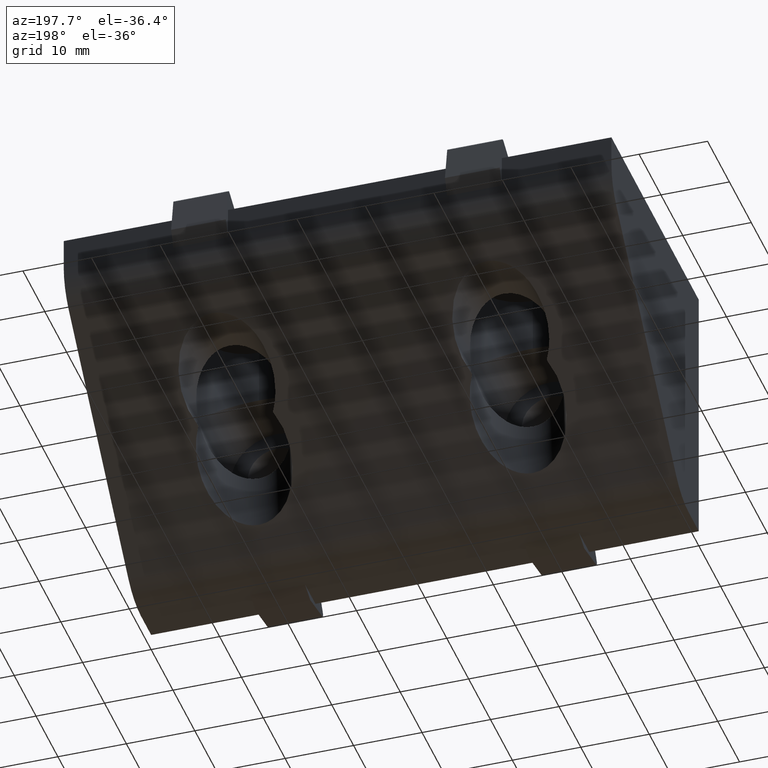
[diagram: clean part render]
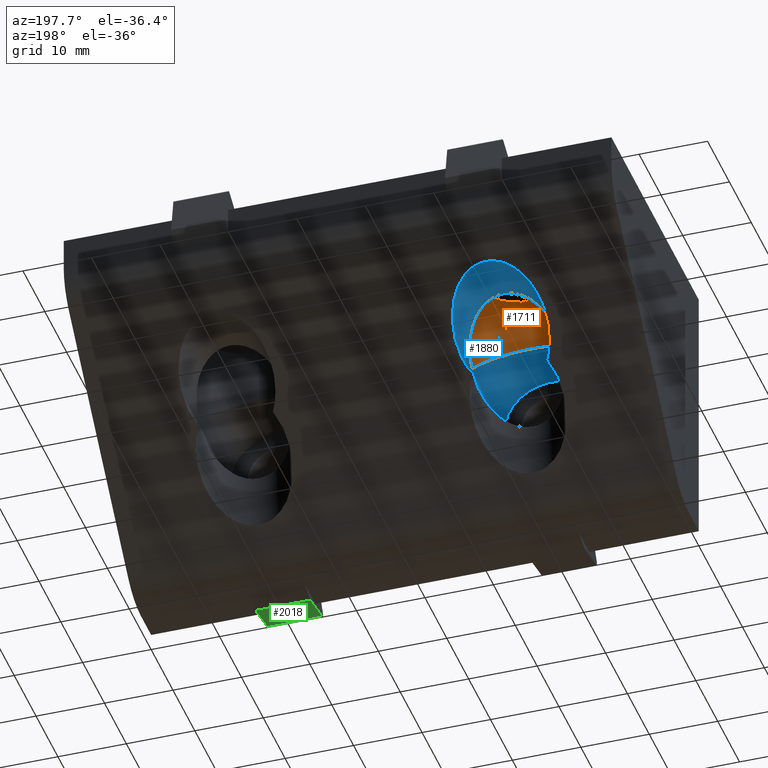
[diagram: same view with three faces highlighted in distinct colors, each labeled with its STEP entity id]
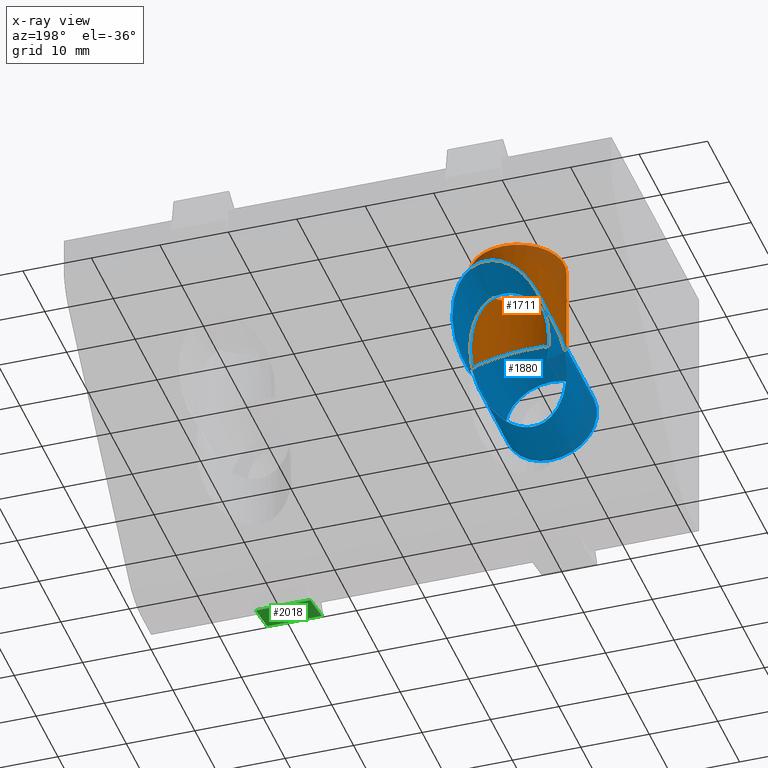
[diagram: x-ray of the same camera — body ghosted, the three highlighted faces saturated]
A machine part, auxiliary view with three faces highlighted in distinct colors.
The next image is the same camera in x-ray (body ghosted, the three faces saturated) — at least one of them is partly hidden behind the body in this view.
Their STEP definitions:

[orange] entity #1711 — the highlighted cylindrical surface (bore or boss wall) has radius 6.75 mm, axis along (0, 0, -1).
#1565=CARTESIAN_POINT('',(-19.999992699920845,13.249997058446894,-4.999998889979906));
#1566=VERTEX_POINT('',#1565);
#1567=CARTESIAN_POINT('',(-19.999992699920845,26.749994061393267,-4.999998889979906));
#1568=VERTEX_POINT('',#1567);
#1569=CARTESIAN_POINT('',(-19.999992699920845,19.999995559920080,-4.999998889979906));
#1570=DIRECTION('',(0.0,0.0,-1.0));
#1571=DIRECTION('',(0.0,-1.0,0.0));
#1572=AXIS2_PLACEMENT_3D('',#1569,#1570,#1571);
#1573=CIRCLE('',#1572,6.749998501473186);
#1574=EDGE_CURVE('',#1566,#1568,#1573,.T.);
#1576=CARTESIAN_POINT('',(-19.999992699920845,19.999995559920080,-4.999998889979906));
#1577=DIRECTION('',(0.0,0.0,-1.0));
#1578=DIRECTION('',(0.0,-1.0,0.0));
#1579=AXIS2_PLACEMENT_3D('',#1576,#1577,#1578);
#1580=CIRCLE('',#1579,6.749998501473186);
#1581=EDGE_CURVE('',#1568,#1566,#1580,.T.);
#1590=CARTESIAN_POINT('',(-19.999992699920845,19.999995559920080,-4.999998889979906));
#1591=DIRECTION('',(0.0,0.0,-1.0));
#1592=DIRECTION('',(0.0,-1.0,0.0));
#1593=AXIS2_PLACEMENT_3D('',#1590,#1591,#1592);
#1594=CYLINDRICAL_SURFACE('',#1593,6.749998501473186);
#1595=CARTESIAN_POINT('',(-19.999992699920845,13.249997058446896,-13.249989428467934));
#1596=VERTEX_POINT('',#1595);
#1597=CARTESIAN_POINT('',(-19.999992699920845,13.249997058446894,-4.999998889979906));
#1598=DIRECTION('',(0.0,0.0,-1.0));
#1599=VECTOR('',#1598,8.249990538488028);
#1600=LINE('',#1597,#1599);
#1601=EDGE_CURVE('',#1566,#1596,#1600,.T.);
#1602=ORIENTED_EDGE('',*,*,#1601,.T.);
#1603=CARTESIAN_POINT('',(-19.999899833690659,26.749995335546590,-13.249988154311279));
#1604=VERTEX_POINT('',#1603);
#1605=CARTESIAN_POINT('',(-19.999992699920845,13.249997058446894,-13.249989428467934));
#1606=CARTESIAN_POINT('',(-20.179597409290309,13.249997058446894,-13.249989428467934));
#1607=CARTESIAN_POINT('',(-20.621979188865019,13.267698458312340,-13.267690818365590));
#1608=CARTESIAN_POINT('',(-21.553988099082588,13.397461106541837,-13.397453392444831));
#1609=CARTESIAN_POINT('',(-22.662619241531424,13.750822658735208,-13.750814732642816));
#1610=CARTESIAN_POINT('',(-23.701062050114096,14.322251592291842,-14.322243258143217));
#1611=CARTESIAN_POINT('',(-24.418054359838457,14.876850514915297,-14.876841691067471));
#1612=CARTESIAN_POINT('',(-24.880769303251135,15.327973191278765,-15.327963877101599));
#1613=CARTESIAN_POINT('',(-25.304974332112799,15.808534316511171,-15.808524383938263));
#1614=CARTESIAN_POINT('',(-25.653096795751843,16.289903656570630,-16.289892969990923));
#1615=CARTESIAN_POINT('',(-25.964402816088260,16.826733819593485,-16.826721925100799));
#1616=CARTESIAN_POINT('',(-26.151357351484073,17.211404257870981,-17.211391309919364));
#1617=CARTESIAN_POINT('',(-26.328472202969174,17.637423710131031,-17.637408958575932));
#1618=CARTESIAN_POINT('',(-26.463392174906922,18.034275459265196,-18.034259737670020));
#1619=CARTESIAN_POINT('',(-26.575034668722601,18.458647266729059,-18.458624968281729));
#1620=CARTESIAN_POINT('',(-26.640231472630624,18.775113238330302,-18.775095460178498));
#1621=CARTESIAN_POINT('',(-26.684501818695772,19.051883908134805,-19.051837785622773));
#1622=CARTESIAN_POINT('',(-26.708964275162806,19.249511063587022,-19.249520315662842));
#1623=CARTESIAN_POINT('',(-26.724293718517991,19.407563323757500,-19.407435938328707));
#1624=CARTESIAN_POINT('',(-26.733681321855990,19.526070382943200,-19.526320873769311));
#1625=CARTESIAN_POINT('',(-26.740972663695196,19.644469192284323,-19.643246708170029));
#1626=CARTESIAN_POINT('',(-26.746179366100954,19.763256711689369,-19.767435341276229));
#1627=CARTESIAN_POINT('',(-26.749258890342581,19.879454216133318,-19.863491129078671));
#1628=CARTESIAN_POINT('',(-26.750352039271100,19.999995559919789,-20.056538199255122));
#1629=CARTESIAN_POINT('',(-26.749258890342979,20.120536903708022,-19.863491129077698));
#1630=CARTESIAN_POINT('',(-26.746179366099334,20.236734408146543,-19.767435341280247));
#1631=CARTESIAN_POINT('',(-26.740972663701264,20.355521927571640,-19.643246708154962));
#1632=CARTESIAN_POINT('',(-26.733681321833267,20.473920736837954,-19.526320873825597));
#1633=CARTESIAN_POINT('',(-26.724293718602901,20.592427796303102,-19.407435938118436));
#1634=CARTESIAN_POINT('',(-26.708964274711199,20.750480055080608,-19.249520316781229));
#1635=CARTESIAN_POINT('',(-26.684501822345020,20.948107221180081,-19.051837776585636));
#1636=CARTESIAN_POINT('',(-26.640231456397053,21.224877839361685,-18.775095500380047));
#1637=CARTESIAN_POINT('',(-26.575034764356410,21.541344101411742,-18.458624731448886));
#1638=CARTESIAN_POINT('',(-26.455777296444587,21.994658018887318,-18.005317770389105));
#1639=CARTESIAN_POINT('',(-26.295329487327059,22.456635661502325,-17.543341084858998));
#1640=CARTESIAN_POINT('',(-26.072506098025549,22.960648171961040,-17.039330559127908));
#1641=CARTESIAN_POINT('',(-25.818131427256041,23.440128646663176,-16.559851209787659));
#1642=CARTESIAN_POINT('',(-25.392591696026336,24.093418011726605,-15.906563085141503));
#1643=CARTESIAN_POINT('',(-24.830363647534917,24.748983398419689,-15.250998515563126));
#1644=CARTESIAN_POINT('',(-23.978556948863989,25.491167697903109,-14.508814945183829));
#1645=CARTESIAN_POINT('',(-23.125184965377066,26.020369038130795,-13.979613997320794));
#1646=CARTESIAN_POINT('',(-22.036140710346075,26.461499044706095,-13.538484278508866));
#1647=CARTESIAN_POINT('',(-21.071548641561758,26.696322205057218,-13.303661254663584));
#1648=CARTESIAN_POINT('',(-20.318208320361617,26.749993322488166,-13.249990167356261));
#1649=CARTESIAN_POINT('',(-19.999899833690659,26.749995335546590,-13.249988154311279));
#1650=B_SPLINE_CURVE_WITH_KNOTS('',3,(#1605,#1606,#1607,#1608,#1609,#1610,#1611,#1612,#1613,#1614,#1615,#1616,#1617,#1618,#1619,#1620,#1621,#1622,#1623,#1624,#1625,#1626,#1627,#1628,#1629,#1630,#1631,#1632,#1633,#1634,#1635,#1636,#1637,#1638,#1639,#1640,#1641,#1642,#1643,#1644,#1645,#1646,#1647,#1648,#1649),.UNSPECIFIED.,.F.,.U.,(4,1,1,1,1,1,1,1,1,1,1,1,1,1,1,1,1,1,1,1,1,1,1,1,1,1,1,1,1,1,1,1,1,1,1,1,1,1,1,1,1,1,4),(0.0,0.539081213596918,1.326695496417043,2.840035277583268,4.151706921437035,5.254611806897104,6.019984913599855,6.513780684534441,7.657144544209129,8.310137588951935,8.974364245271438,9.382123786417033,10.193785180283921,10.705100481138352,11.213090108221090,11.550332053166615,11.886715360339998,12.054654366879507,12.222459981833707,12.390156322223111,12.557762044025377,12.725264924369748,12.887972188165056,13.050679451960365,13.218182332304735,13.385788054107001,13.553484394496401,13.721290009450613,13.889229015990109,14.225612323163494,14.562854268109014,15.070843895191764,15.582159196048842,16.518698735025335,17.087624337635738,17.821888263034616,18.690201580889635,20.136813446438950,21.064805781785051,22.739553024633636,23.516414668748737,24.821124126270732,25.776092787975244),.UNSPECIFIED.);
#1651=EDGE_CURVE('',#1596,#1604,#1650,.T.);
#1652=ORIENTED_EDGE('',*,*,#1651,.T.);
#1653=CARTESIAN_POINT('',(-19.999899833690659,26.749995335546590,-13.249988154311279));
#1654=CARTESIAN_POINT('',(-19.978532824070417,26.749995470676630,-13.249988019182139));
#1655=CARTESIAN_POINT('',(-19.583856316334298,26.748110240725900,-13.251873248091051));
#1656=CARTESIAN_POINT('',(-18.910978656243493,26.685141504157357,-13.314841949490202));
#1657=CARTESIAN_POINT('',(-17.989770650524669,26.462920034590393,-13.537063287735167));
#1658=CARTESIAN_POINT('',(-17.092016026539874,26.120372317056407,-13.879610786816695));
#1659=CARTESIAN_POINT('',(-16.110563286347009,25.562352199923367,-14.437630497304321));
#1660=CARTESIAN_POINT('',(-15.329738657163865,24.905890936831916,-15.094091157098131));
#1661=CARTESIAN_POINT('',(-14.759390848846429,24.270670768604440,-15.729310533880222));
#1662=CARTESIAN_POINT('',(-14.428510905099870,23.822264239304399,-16.177716357643227));
#1663=CARTESIAN_POINT('',(-14.090456627210351,23.283520516227046,-16.716459014109795));
#1664=CARTESIAN_POINT('',(-13.828707505904006,22.762840602569071,-17.237137527170127));
#1665=CARTESIAN_POINT('',(-13.633643992052662,22.254529586630674,-17.745446451800348));
#1666=CARTESIAN_POINT('',(-13.536128526561662,21.949369085894908,-18.050604986581572));
#1667=CARTESIAN_POINT('',(-13.476254517551716,21.736423257753767,-18.263549476381037));
#1668=CARTESIAN_POINT('',(-13.438049125727282,21.584359570572119,-18.415610914075874));
#1669=CARTESIAN_POINT('',(-13.385799012527862,21.356423569336826,-18.643547465448524));
#1670=CARTESIAN_POINT('',(-13.343941714697706,21.135457769133801,-18.864470835225955));
#1671=CARTESIAN_POINT('',(-13.303238727655675,20.855438400164182,-19.144578668242350));
#1672=CARTESIAN_POINT('',(-13.283115870737980,20.677153590891862,-19.322498475748954));
#1673=CARTESIAN_POINT('',(-13.269504429167874,20.516589029023166,-19.483751191611450));
#1674=CARTESIAN_POINT('',(-13.262143023913303,20.409439764511589,-19.588944077397990));
#1675=CARTESIAN_POINT('',(-13.255708697270066,20.287942896840121,-19.718723325752148));
#1676=CARTESIAN_POINT('',(-13.251181125975712,20.151139155977713,-19.812036552351238));
#1677=CARTESIAN_POINT('',(-13.249872417830822,20.046660969040616,-20.039185430335493));
#1678=CARTESIAN_POINT('',(-13.250043961796969,19.968687763475316,-19.968390110248524));
#1679=CARTESIAN_POINT('',(-13.250488480754740,19.902992686926684,-19.902311338453440));
#1680=CARTESIAN_POINT('',(-13.252597669128768,19.793852183525800,-19.793929312903451));
#1681=CARTESIAN_POINT('',(-13.258656086914137,19.647930438536417,-19.647805792586055));
#1682=CARTESIAN_POINT('',(-13.267911660180914,19.501198934950864,-19.501158635320376));
#1683=CARTESIAN_POINT('',(-13.280375921335100,19.354670624859125,-19.354623869300369));
#1684=CARTESIAN_POINT('',(-13.296066782805561,19.208085794516364,-19.208050792931914));
#1685=CARTESIAN_POINT('',(-13.321341273340074,19.012496766510100,-19.012466804102367));
#1686=CARTESIAN_POINT('',(-13.353164658639720,18.817028295454215,-18.817003020961323));
#1687=CARTESIAN_POINT('',(-13.401299647931531,18.572689408624520,-18.572667679734103));
#1688=CARTESIAN_POINT('',(-13.458022194214230,18.327984458525037,-18.327965405550529));
#1689=CARTESIAN_POINT('',(-13.540013797324598,18.034682549312439,-18.034665723927443));
#1690=CARTESIAN_POINT('',(-13.633881640611769,17.749491780425085,-17.749476581617930));
#1691=CARTESIAN_POINT('',(-13.750997731716900,17.440355249311590,-17.440341427256293));
#1692=CARTESIAN_POINT('',(-14.014394878182443,16.838793100106887,-16.838781352086198));
#1693=CARTESIAN_POINT('',(-14.370781799265693,16.238014455938341,-16.238003862871381));
#1694=CARTESIAN_POINT('',(-14.841826031923375,15.637836217114838,-15.637826513326745));
#1695=CARTESIAN_POINT('',(-15.149274034762023,15.297025478366660,-15.297016198067144));
#1696=CARTESIAN_POINT('',(-15.636419646000164,14.832014933034914,-14.832006152101998));
#1697=CARTESIAN_POINT('',(-16.200138636860579,14.398700964078596,-14.398692561676535));
#1698=CARTESIAN_POINT('',(-17.066969777376698,13.893764362356110,-13.893756338702357));
#1699=CARTESIAN_POINT('',(-18.025333235048457,13.505469487917622,-13.505461711106491));
#1700=CARTESIAN_POINT('',(-19.100942017407299,13.286976161776463,-13.286968511012892));
#1701=CARTESIAN_POINT('',(-19.741264546549480,13.249997058446894,-13.249989428467934));
#1702=CARTESIAN_POINT('',(-19.999992699920845,13.249997058446894,-13.249989428467934));
#1703=B_SPLINE_CURVE_WITH_KNOTS('',3,(#1653,#1654,#1655,#1656,#1657,#1658,#1659,#1660,#1661,#1662,#1663,#1664,#1665,#1666,#1667,#1668,#1669,#1670,#1671,#1672,#1673,#1674,#1675,#1676,#1677,#1678,#1679,#1680,#1681,#1682,#1683,#1684,#1685,#1686,#1687,#1688,#1689,#1690,#1691,#1692,#1693,#1694,#1695,#1696,#1697,#1698,#1699,#1700,#1701,#1702),.UNSPECIFIED.,.F.,.U.,(4,1,1,1,1,1,1,1,1,1,1,1,1,1,1,1,1,1,1,1,1,1,1,1,1,1,1,1,1,1,1,1,1,1,1,1,1,1,1,1,1,1,1,1,1,1,1,4),(25.776092787975244,25.840196716824508,26.960191533882444,27.798726904106502,28.750473198514932,30.009639784215658,31.559226510072634,32.372749497238630,33.199114070792213,33.703196129358354,34.872631791389608,35.540518584049963,35.936954719324397,36.199781494929852,36.461598530456037,36.592168621478891,37.179432648307888,37.407188337839933,37.786388613416008,37.938086218170703,38.089687776155714,38.241209463808602,38.455031128933705,38.663963927974208,38.701507565310145,38.742951861740856,38.950013859969872,39.157326338504120,39.364778442499770,39.572405335816846,39.780253940093793,39.988374681068592,40.405644960134573,40.614905864511279,41.034975591191767,41.457539042198420,41.883165157733721,42.277080732004030,42.815132120546082,44.554332674294642,45.032236561446553,45.726325711255278,46.268155923805395,47.486336597464913,48.216145272256952,49.632709786956497,50.775163844869809,51.552185575950489),.UNSPECIFIED.);
#1704=EDGE_CURVE('',#1604,#1596,#1703,.T.);
#1705=ORIENTED_EDGE('',*,*,#1704,.T.);
#1706=ORIENTED_EDGE('',*,*,#1601,.F.);
#1707=ORIENTED_EDGE('',*,*,#1581,.F.);
#1708=ORIENTED_EDGE('',*,*,#1574,.F.);
#1709=EDGE_LOOP('',(#1602,#1652,#1705,#1706,#1707,#1708));
#1710=FACE_OUTER_BOUND('',#1709,.T.);
#1711=ADVANCED_FACE('',(#1710),#1594,.F.);

[blue] entity #1880 — the highlighted cylindrical surface (bore or boss wall) has radius 6.75 mm, axis along (0, 1, 0).
#431=CARTESIAN_POINT('',(-25.437133951099561,23.999992407996466,-23.999995030801600));
#432=VERTEX_POINT('',#431);
#442=CARTESIAN_POINT('',(-14.562851448739188,23.999992408000303,-23.999995030797592));
#443=VERTEX_POINT('',#442);
#451=CARTESIAN_POINT('',(-19.999992699920845,27.999995135905468,-19.999991744930448));
#452=DIRECTION('',(0.0,-0.707106830503862,0.707106731869230));
#453=DIRECTION('',(0.0,0.707106731869230,0.707106830503862));
#454=AXIS2_PLACEMENT_3D('',#451,#452,#453);
#455=ELLIPSE('',#454,9.545944156207165,6.750002316462510);
#456=EDGE_CURVE('',#443,#432,#455,.T.);
#1595=CARTESIAN_POINT('',(-19.999992699920845,13.249997058446896,-13.249989428467934));
#1596=VERTEX_POINT('',#1595);
#1603=CARTESIAN_POINT('',(-19.999899833690659,26.749995335546590,-13.249988154311279));
#1604=VERTEX_POINT('',#1603);
#1605=CARTESIAN_POINT('',(-19.999992699920845,13.249997058446894,-13.249989428467934));
#1606=CARTESIAN_POINT('',(-20.179597409290309,13.249997058446894,-13.249989428467934));
#1607=CARTESIAN_POINT('',(-20.621979188865019,13.267698458312340,-13.267690818365590));
#1608=CARTESIAN_POINT('',(-21.553988099082588,13.397461106541837,-13.397453392444831));
#1609=CARTESIAN_POINT('',(-22.662619241531424,13.750822658735208,-13.750814732642816));
#1610=CARTESIAN_POINT('',(-23.701062050114096,14.322251592291842,-14.322243258143217));
#1611=CARTESIAN_POINT('',(-24.418054359838457,14.876850514915297,-14.876841691067471));
#1612=CARTESIAN_POINT('',(-24.880769303251135,15.327973191278765,-15.327963877101599));
#1613=CARTESIAN_POINT('',(-25.304974332112799,15.808534316511171,-15.808524383938263));
#1614=CARTESIAN_POINT('',(-25.653096795751843,16.289903656570630,-16.289892969990923));
#1615=CARTESIAN_POINT('',(-25.964402816088260,16.826733819593485,-16.826721925100799));
#1616=CARTESIAN_POINT('',(-26.151357351484073,17.211404257870981,-17.211391309919364));
#1617=CARTESIAN_POINT('',(-26.328472202969174,17.637423710131031,-17.637408958575932));
#1618=CARTESIAN_POINT('',(-26.463392174906922,18.034275459265196,-18.034259737670020));
#1619=CARTESIAN_POINT('',(-26.575034668722601,18.458647266729059,-18.458624968281729));
#1620=CARTESIAN_POINT('',(-26.640231472630624,18.775113238330302,-18.775095460178498));
#1621=CARTESIAN_POINT('',(-26.684501818695772,19.051883908134805,-19.051837785622773));
#1622=CARTESIAN_POINT('',(-26.708964275162806,19.249511063587022,-19.249520315662842));
#1623=CARTESIAN_POINT('',(-26.724293718517991,19.407563323757500,-19.407435938328707));
#1624=CARTESIAN_POINT('',(-26.733681321855990,19.526070382943200,-19.526320873769311));
#1625=CARTESIAN_POINT('',(-26.740972663695196,19.644469192284323,-19.643246708170029));
#1626=CARTESIAN_POINT('',(-26.746179366100954,19.763256711689369,-19.767435341276229));
#1627=CARTESIAN_POINT('',(-26.749258890342581,19.879454216133318,-19.863491129078671));
#1628=CARTESIAN_POINT('',(-26.750352039271100,19.999995559919789,-20.056538199255122));
#1629=CARTESIAN_POINT('',(-26.749258890342979,20.120536903708022,-19.863491129077698));
#1630=CARTESIAN_POINT('',(-26.746179366099334,20.236734408146543,-19.767435341280247));
#1631=CARTESIAN_POINT('',(-26.740972663701264,20.355521927571640,-19.643246708154962));
#1632=CARTESIAN_POINT('',(-26.733681321833267,20.473920736837954,-19.526320873825597));
#1633=CARTESIAN_POINT('',(-26.724293718602901,20.592427796303102,-19.407435938118436));
#1634=CARTESIAN_POINT('',(-26.708964274711199,20.750480055080608,-19.249520316781229));
#1635=CARTESIAN_POINT('',(-26.684501822345020,20.948107221180081,-19.051837776585636));
#1636=CARTESIAN_POINT('',(-26.640231456397053,21.224877839361685,-18.775095500380047));
#1637=CARTESIAN_POINT('',(-26.575034764356410,21.541344101411742,-18.458624731448886));
#1638=CARTESIAN_POINT('',(-26.455777296444587,21.994658018887318,-18.005317770389105));
#1639=CARTESIAN_POINT('',(-26.295329487327059,22.456635661502325,-17.543341084858998));
#1640=CARTESIAN_POINT('',(-26.072506098025549,22.960648171961040,-17.039330559127908));
#1641=CARTESIAN_POINT('',(-25.818131427256041,23.440128646663176,-16.559851209787659));
#1642=CARTESIAN_POINT('',(-25.392591696026336,24.093418011726605,-15.906563085141503));
#1643=CARTESIAN_POINT('',(-24.830363647534917,24.748983398419689,-15.250998515563126));
#1644=CARTESIAN_POINT('',(-23.978556948863989,25.491167697903109,-14.508814945183829));
#1645=CARTESIAN_POINT('',(-23.125184965377066,26.020369038130795,-13.979613997320794));
#1646=CARTESIAN_POINT('',(-22.036140710346075,26.461499044706095,-13.538484278508866));
#1647=CARTESIAN_POINT('',(-21.071548641561758,26.696322205057218,-13.303661254663584));
#1648=CARTESIAN_POINT('',(-20.318208320361617,26.749993322488166,-13.249990167356261));
#1649=CARTESIAN_POINT('',(-19.999899833690659,26.749995335546590,-13.249988154311279));
#1650=B_SPLINE_CURVE_WITH_KNOTS('',3,(#1605,#1606,#1607,#1608,#1609,#1610,#1611,#1612,#1613,#1614,#1615,#1616,#1617,#1618,#1619,#1620,#1621,#1622,#1623,#1624,#1625,#1626,#1627,#1628,#1629,#1630,#1631,#1632,#1633,#1634,#1635,#1636,#1637,#1638,#1639,#1640,#1641,#1642,#1643,#1644,#1645,#1646,#1647,#1648,#1649),.UNSPECIFIED.,.F.,.U.,(4,1,1,1,1,1,1,1,1,1,1,1,1,1,1,1,1,1,1,1,1,1,1,1,1,1,1,1,1,1,1,1,1,1,1,1,1,1,1,1,1,1,4),(0.0,0.539081213596918,1.326695496417043,2.840035277583268,4.151706921437035,5.254611806897104,6.019984913599855,6.513780684534441,7.657144544209129,8.310137588951935,8.974364245271438,9.382123786417033,10.193785180283921,10.705100481138352,11.213090108221090,11.550332053166615,11.886715360339998,12.054654366879507,12.222459981833707,12.390156322223111,12.557762044025377,12.725264924369748,12.887972188165056,13.050679451960365,13.218182332304735,13.385788054107001,13.553484394496401,13.721290009450613,13.889229015990109,14.225612323163494,14.562854268109014,15.070843895191764,15.582159196048842,16.518698735025335,17.087624337635738,17.821888263034616,18.690201580889635,20.136813446438950,21.064805781785051,22.739553024633636,23.516414668748737,24.821124126270732,25.776092787975244),.UNSPECIFIED.);
#1651=EDGE_CURVE('',#1596,#1604,#1650,.T.);
#1653=CARTESIAN_POINT('',(-19.999899833690659,26.749995335546590,-13.249988154311279));
#1654=CARTESIAN_POINT('',(-19.978532824070417,26.749995470676630,-13.249988019182139));
#1655=CARTESIAN_POINT('',(-19.583856316334298,26.748110240725900,-13.251873248091051));
#1656=CARTESIAN_POINT('',(-18.910978656243493,26.685141504157357,-13.314841949490202));
#1657=CARTESIAN_POINT('',(-17.989770650524669,26.462920034590393,-13.537063287735167));
#1658=CARTESIAN_POINT('',(-17.092016026539874,26.120372317056407,-13.879610786816695));
#1659=CARTESIAN_POINT('',(-16.110563286347009,25.562352199923367,-14.437630497304321));
#1660=CARTESIAN_POINT('',(-15.329738657163865,24.905890936831916,-15.094091157098131));
#1661=CARTESIAN_POINT('',(-14.759390848846429,24.270670768604440,-15.729310533880222));
#1662=CARTESIAN_POINT('',(-14.428510905099870,23.822264239304399,-16.177716357643227));
#1663=CARTESIAN_POINT('',(-14.090456627210351,23.283520516227046,-16.716459014109795));
#1664=CARTESIAN_POINT('',(-13.828707505904006,22.762840602569071,-17.237137527170127));
#1665=CARTESIAN_POINT('',(-13.633643992052662,22.254529586630674,-17.745446451800348));
#1666=CARTESIAN_POINT('',(-13.536128526561662,21.949369085894908,-18.050604986581572));
#1667=CARTESIAN_POINT('',(-13.476254517551716,21.736423257753767,-18.263549476381037));
#1668=CARTESIAN_POINT('',(-13.438049125727282,21.584359570572119,-18.415610914075874));
#1669=CARTESIAN_POINT('',(-13.385799012527862,21.356423569336826,-18.643547465448524));
#1670=CARTESIAN_POINT('',(-13.343941714697706,21.135457769133801,-18.864470835225955));
#1671=CARTESIAN_POINT('',(-13.303238727655675,20.855438400164182,-19.144578668242350));
#1672=CARTESIAN_POINT('',(-13.283115870737980,20.677153590891862,-19.322498475748954));
#1673=CARTESIAN_POINT('',(-13.269504429167874,20.516589029023166,-19.483751191611450));
#1674=CARTESIAN_POINT('',(-13.262143023913303,20.409439764511589,-19.588944077397990));
#1675=CARTESIAN_POINT('',(-13.255708697270066,20.287942896840121,-19.718723325752148));
#1676=CARTESIAN_POINT('',(-13.251181125975712,20.151139155977713,-19.812036552351238));
#1677=CARTESIAN_POINT('',(-13.249872417830822,20.046660969040616,-20.039185430335493));
#1678=CARTESIAN_POINT('',(-13.250043961796969,19.968687763475316,-19.968390110248524));
#1679=CARTESIAN_POINT('',(-13.250488480754740,19.902992686926684,-19.902311338453440));
#1680=CARTESIAN_POINT('',(-13.252597669128768,19.793852183525800,-19.793929312903451));
#1681=CARTESIAN_POINT('',(-13.258656086914137,19.647930438536417,-19.647805792586055));
#1682=CARTESIAN_POINT('',(-13.267911660180914,19.501198934950864,-19.501158635320376));
#1683=CARTESIAN_POINT('',(-13.280375921335100,19.354670624859125,-19.354623869300369));
#1684=CARTESIAN_POINT('',(-13.296066782805561,19.208085794516364,-19.208050792931914));
#1685=CARTESIAN_POINT('',(-13.321341273340074,19.012496766510100,-19.012466804102367));
#1686=CARTESIAN_POINT('',(-13.353164658639720,18.817028295454215,-18.817003020961323));
#1687=CARTESIAN_POINT('',(-13.401299647931531,18.572689408624520,-18.572667679734103));
#1688=CARTESIAN_POINT('',(-13.458022194214230,18.327984458525037,-18.327965405550529));
#1689=CARTESIAN_POINT('',(-13.540013797324598,18.034682549312439,-18.034665723927443));
#1690=CARTESIAN_POINT('',(-13.633881640611769,17.749491780425085,-17.749476581617930));
#1691=CARTESIAN_POINT('',(-13.750997731716900,17.440355249311590,-17.440341427256293));
#1692=CARTESIAN_POINT('',(-14.014394878182443,16.838793100106887,-16.838781352086198));
#1693=CARTESIAN_POINT('',(-14.370781799265693,16.238014455938341,-16.238003862871381));
#1694=CARTESIAN_POINT('',(-14.841826031923375,15.637836217114838,-15.637826513326745));
#1695=CARTESIAN_POINT('',(-15.149274034762023,15.297025478366660,-15.297016198067144));
#1696=CARTESIAN_POINT('',(-15.636419646000164,14.832014933034914,-14.832006152101998));
#1697=CARTESIAN_POINT('',(-16.200138636860579,14.398700964078596,-14.398692561676535));
#1698=CARTESIAN_POINT('',(-17.066969777376698,13.893764362356110,-13.893756338702357));
#1699=CARTESIAN_POINT('',(-18.025333235048457,13.505469487917622,-13.505461711106491));
#1700=CARTESIAN_POINT('',(-19.100942017407299,13.286976161776463,-13.286968511012892));
#1701=CARTESIAN_POINT('',(-19.741264546549480,13.249997058446894,-13.249989428467934));
#1702=CARTESIAN_POINT('',(-19.999992699920845,13.249997058446894,-13.249989428467934));
#1703=B_SPLINE_CURVE_WITH_KNOTS('',3,(#1653,#1654,#1655,#1656,#1657,#1658,#1659,#1660,#1661,#1662,#1663,#1664,#1665,#1666,#1667,#1668,#1669,#1670,#1671,#1672,#1673,#1674,#1675,#1676,#1677,#1678,#1679,#1680,#1681,#1682,#1683,#1684,#1685,#1686,#1687,#1688,#1689,#1690,#1691,#1692,#1693,#1694,#1695,#1696,#1697,#1698,#1699,#1700,#1701,#1702),.UNSPECIFIED.,.F.,.U.,(4,1,1,1,1,1,1,1,1,1,1,1,1,1,1,1,1,1,1,1,1,1,1,1,1,1,1,1,1,1,1,1,1,1,1,1,1,1,1,1,1,1,1,1,1,1,1,4),(25.776092787975244,25.840196716824508,26.960191533882444,27.798726904106502,28.750473198514932,30.009639784215658,31.559226510072634,32.372749497238630,33.199114070792213,33.703196129358354,34.872631791389608,35.540518584049963,35.936954719324397,36.199781494929852,36.461598530456037,36.592168621478891,37.179432648307888,37.407188337839933,37.786388613416008,37.938086218170703,38.089687776155714,38.241209463808602,38.455031128933705,38.663963927974208,38.701507565310145,38.742951861740856,38.950013859969872,39.157326338504120,39.364778442499770,39.572405335816846,39.780253940093793,39.988374681068592,40.405644960134573,40.614905864511279,41.034975591191767,41.457539042198420,41.883165157733721,42.277080732004030,42.815132120546082,44.554332674294642,45.032236561446553,45.726325711255278,46.268155923805395,47.486336597464913,48.216145272256952,49.632709786956497,50.775163844869809,51.552185575950489),.UNSPECIFIED.);
#1704=EDGE_CURVE('',#1604,#1596,#1703,.T.);
#1752=CARTESIAN_POINT('',(-19.999992699920845,4.999998889979906,-26.749994061392954));
#1753=VERTEX_POINT('',#1752);
#1754=CARTESIAN_POINT('',(-19.999992699920845,4.999998889979906,-13.249989428467934));
#1755=VERTEX_POINT('',#1754);
#1756=CARTESIAN_POINT('',(-19.999992699920845,4.999998889979906,-19.999991744930444));
#1757=DIRECTION('',(0.0,1.0,0.0));
#1758=DIRECTION('',(0.0,0.0,-1.0));
#1759=AXIS2_PLACEMENT_3D('',#1756,#1757,#1758);
#1760=CIRCLE('',#1759,6.750002316462510);
#1761=EDGE_CURVE('',#1753,#1755,#1760,.T.);
#1763=CARTESIAN_POINT('',(-19.999992699920845,4.999998889979906,-19.999991744930444));
#1764=DIRECTION('',(0.0,1.0,0.0));
#1765=DIRECTION('',(0.0,0.0,-1.0));
#1766=AXIS2_PLACEMENT_3D('',#1763,#1764,#1765);
#1767=CIRCLE('',#1766,6.750002316462510);
#1768=EDGE_CURVE('',#1755,#1753,#1767,.T.);
#1777=CARTESIAN_POINT('',(-19.999992699920845,4.999998889979906,-19.999991744930444));
#1778=DIRECTION('',(0.0,1.0,0.0));
#1779=DIRECTION('',(0.0,0.0,-1.0));
#1780=AXIS2_PLACEMENT_3D('',#1777,#1778,#1779);
#1781=CYLINDRICAL_SURFACE('',#1780,6.750002316462510);
#1782=CARTESIAN_POINT('',(-19.999992699920845,13.249997058446896,-26.749994061392954));
#1783=VERTEX_POINT('',#1782);
#1784=CARTESIAN_POINT('',(-19.999992699920845,4.999998889979906,-26.749994061392954));
#1785=DIRECTION('',(0.0,1.0,0.0));
#1786=VECTOR('',#1785,8.249998168466989);
#1787=LINE('',#1784,#1786);
#1788=EDGE_CURVE('',#1753,#1783,#1787,.T.);
#1789=ORIENTED_EDGE('',*,*,#1788,.T.);
#1790=CARTESIAN_POINT('',(-25.437133951099561,23.999992407996466,-23.999995030801600));
#1791=CARTESIAN_POINT('',(-25.598105873188338,23.781185466113168,-23.781188441076559));
#1792=CARTESIAN_POINT('',(-25.924084022196631,23.275934713286553,-23.275939091953703));
#1793=CARTESIAN_POINT('',(-26.242022590191802,22.603114710207841,-22.603118947710023));
#1794=CARTESIAN_POINT('',(-26.433213866425824,22.056206694990344,-22.056217621132021));
#1795=CARTESIAN_POINT('',(-26.547135956580398,21.657576435693990,-21.657581151056419));
#1796=CARTESIAN_POINT('',(-26.625573872941850,21.308829581067418,-21.308879131748185));
#1797=CARTESIAN_POINT('',(-26.683672191972953,20.959815421828807,-20.959757476563922));
#1798=CARTESIAN_POINT('',(-26.713780485485593,20.710685581855650,-20.710954915331129));
#1799=CARTESIAN_POINT('',(-26.730520192917318,20.518564568571140,-20.518220506448646));
#1800=CARTESIAN_POINT('',(-26.739489045298747,20.383630186206521,-20.384935195894165));
#1801=CARTESIAN_POINT('',(-26.745552436441621,20.255471726906354,-20.250892017905539));
#1802=CARTESIAN_POINT('',(-26.749141661477246,20.129913927219029,-20.147301275286793));
#1803=CARTESIAN_POINT('',(-26.750410226154990,19.999995550618962,-19.938049537103993));
#1804=CARTESIAN_POINT('',(-26.749141662449027,19.870077230335667,-20.147300685513173));
#1805=CARTESIAN_POINT('',(-26.745552432428759,19.744519257015043,-20.250894453296990));
#1806=CARTESIAN_POINT('',(-26.739489060347687,19.616361438502974,-20.384926062739037));
#1807=CARTESIAN_POINT('',(-26.729612760047466,19.467773172366687,-20.531745952358612));
#1808=CARTESIAN_POINT('',(-26.714321880819291,19.298232756370158,-20.701948723075567));
#1809=CARTESIAN_POINT('',(-26.687924436411713,19.076143330790753,-20.923804446523107));
#1810=CARTESIAN_POINT('',(-26.648926283641480,18.824635261828114,-21.175393484020283));
#1811=CARTESIAN_POINT('',(-26.574970342000334,18.452597603457431,-21.547394315447775));
#1812=CARTESIAN_POINT('',(-26.485717051185468,18.115697143998695,-21.884304882414011));
#1813=CARTESIAN_POINT('',(-26.386434968439239,17.811771655732699,-22.188227214265265));
#1814=CARTESIAN_POINT('',(-26.309678280135167,17.597790921743300,-22.402207142949340));
#1815=CARTESIAN_POINT('',(-26.201193426115218,17.326673456862252,-22.673323404641032));
#1816=CARTESIAN_POINT('',(-26.039461899805666,16.975076521093357,-23.024919260489934));
#1817=CARTESIAN_POINT('',(-25.781892655135856,16.498231192213183,-23.501763400083661));
#1818=CARTESIAN_POINT('',(-25.431400164450174,15.970944748026948,-24.029048909012651));
#1819=CARTESIAN_POINT('',(-24.888275595925087,15.316356827074502,-24.683635935861187));
#1820=CARTESIAN_POINT('',(-24.285190589585419,14.756980562975082,-25.243011636266118));
#1821=CARTESIAN_POINT('',(-23.463793685882173,14.181984244929090,-25.818007474569971));
#1822=CARTESIAN_POINT('',(-22.529685333133102,13.699246742299326,-26.300744642180330));
#1823=CARTESIAN_POINT('',(-21.452566948481767,13.378598416206415,-26.621392776826944));
#1824=CARTESIAN_POINT('',(-20.583246022854432,13.265153136592360,-26.734837991794254));
#1825=CARTESIAN_POINT('',(-20.161360643678940,13.249997058446892,-26.749994061392954));
#1826=CARTESIAN_POINT('',(-19.999992699920845,13.249997058446892,-26.749994061392954));
#1827=B_SPLINE_CURVE_WITH_KNOTS('',3,(#1790,#1791,#1792,#1793,#1794,#1795,#1796,#1797,#1798,#1799,#1800,#1801,#1802,#1803,#1804,#1805,#1806,#1807,#1808,#1809,#1810,#1811,#1812,#1813,#1814,#1815,#1816,#1817,#1818,#1819,#1820,#1821,#1822,#1823,#1824,#1825,#1826),.UNSPECIFIED.,.F.,.U.,(4,1,1,1,1,1,1,1,1,1,1,1,1,1,1,1,1,1,1,1,1,1,1,1,1,1,1,1,1,1,1,1,1,1,4),(0.0,1.046821396697748,2.352537852677162,3.005235927283154,3.436141925269242,4.077694316948743,4.502967690000597,4.926858517046109,5.138423785000463,5.319409127972718,5.500284751073173,5.681047966693753,5.856986833600208,6.032925700506669,6.213688916127254,6.394564539227661,6.575549882199961,6.845127801736862,7.115111737640107,7.521097418616113,7.918418547896192,8.708860235984743,8.974604772488775,9.241731569543381,9.645390879137761,10.169842585463627,10.809952917960498,11.810171939231553,12.638861872151157,14.026997615969194,14.784031331307071,16.101690895137519,17.479657148774628,18.260663004047693,18.744965353688091),.UNSPECIFIED.);
#1828=EDGE_CURVE('',#432,#1783,#1827,.T.);
#1829=ORIENTED_EDGE('',*,*,#1828,.F.);
#1830=ORIENTED_EDGE('',*,*,#456,.F.);
#1831=CARTESIAN_POINT('',(-19.999992699920845,13.249997058446894,-26.749994061392954));
#1832=CARTESIAN_POINT('',(-19.838624756161586,13.249997058446894,-26.749994061392954));
#1833=CARTESIAN_POINT('',(-19.416739376983024,13.265153136592577,-26.734837991794016));
#1834=CARTESIAN_POINT('',(-18.547418451351355,13.378598416208041,-26.621392776825342));
#1835=CARTESIAN_POINT('',(-17.470300066696915,13.699246742303828,-26.300744642175804));
#1836=CARTESIAN_POINT('',(-16.536191713947133,14.181984244936402,-25.818007474562652));
#1837=CARTESIAN_POINT('',(-15.714794810244207,14.756980562984889,-25.243011636256302));
#1838=CARTESIAN_POINT('',(-15.111709803905278,15.316356827086267,-24.683635935849416));
#1839=CARTESIAN_POINT('',(-14.568585235381512,15.970944748040434,-24.029048908999162));
#1840=CARTESIAN_POINT('',(-14.218092744697103,16.498231192227596,-23.501763400069247));
#1841=CARTESIAN_POINT('',(-13.960523500028579,16.975076521108235,-23.024919260475052));
#1842=CARTESIAN_POINT('',(-13.798791973719950,17.326673456877376,-22.673323404625901));
#1843=CARTESIAN_POINT('',(-13.690307119700705,17.597790921758573,-22.402207142934085));
#1844=CARTESIAN_POINT('',(-13.613550431397194,17.811771655748014,-22.188227214249896));
#1845=CARTESIAN_POINT('',(-13.514268348651704,18.115697144014447,-21.884304882398801));
#1846=CARTESIAN_POINT('',(-13.425015057837918,18.452597603469769,-21.547394315429674));
#1847=CARTESIAN_POINT('',(-13.351059116197625,18.824635261846748,-21.175393484011583));
#1848=CARTESIAN_POINT('',(-13.312060963429083,19.076143330785492,-20.923804446494991));
#1849=CARTESIAN_POINT('',(-13.285663519020019,19.298232756418006,-20.701948723106899));
#1850=CARTESIAN_POINT('',(-13.270372639798659,19.467773172245156,-20.531745952222579));
#1851=CARTESIAN_POINT('',(-13.260496339467096,19.616361439038343,-20.384926062824125));
#1852=CARTESIAN_POINT('',(-13.254432967448707,19.744519256083922,-20.250894451877357));
#1853=CARTESIAN_POINT('',(-13.250843737378084,19.870077230848089,-20.147300685506654));
#1854=CARTESIAN_POINT('',(-13.249575173692783,19.999995550618998,-19.938049536923657));
#1855=CARTESIAN_POINT('',(-13.250843738349857,20.129913926706461,-20.147301275280398));
#1856=CARTESIAN_POINT('',(-13.254432963435868,20.255471727838032,-20.250892016485327));
#1857=CARTESIAN_POINT('',(-13.260496354515979,20.383630185669045,-20.384935195981434));
#1858=CARTESIAN_POINT('',(-13.269465206927656,20.518564568662278,-20.518220506345372));
#1859=CARTESIAN_POINT('',(-13.286204914353263,20.710685581791154,-20.710954915385823));
#1860=CARTESIAN_POINT('',(-13.316313207868873,20.959815421844471,-20.959757476539451));
#1861=CARTESIAN_POINT('',(-13.374411526898918,21.308829581056077,-21.308879131754011));
#1862=CARTESIAN_POINT('',(-13.452849443260995,21.657576435694324,-21.657581151053353));
#1863=CARTESIAN_POINT('',(-13.566771533415910,22.056206694990024,-22.056217621132930));
#1864=CARTESIAN_POINT('',(-13.757962809650543,22.603114710210306,-22.603118947711156));
#1865=CARTESIAN_POINT('',(-14.075901377646282,23.275934713285942,-23.275939091957316));
#1866=CARTESIAN_POINT('',(-14.401879526653538,23.781185466117531,-23.781188441074242));
#1867=CARTESIAN_POINT('',(-14.562851448741476,23.999992407999500,-23.999995030798480));
#1868=B_SPLINE_CURVE_WITH_KNOTS('',3,(#1831,#1832,#1833,#1834,#1835,#1836,#1837,#1838,#1839,#1840,#1841,#1842,#1843,#1844,#1845,#1846,#1847,#1848,#1849,#1850,#1851,#1852,#1853,#1854,#1855,#1856,#1857,#1858,#1859,#1860,#1861,#1862,#1863,#1864,#1865,#1866,#1867),.UNSPECIFIED.,.F.,.U.,(4,1,1,1,1,1,1,1,1,1,1,1,1,1,1,1,1,1,1,1,1,1,1,1,1,1,1,1,1,1,1,1,1,1,4),(0.0,0.484302349643901,1.265308204922683,2.643274458564265,3.960934022397619,4.717967737736834,6.106103481557359,6.934793414478424,7.935012435749798,8.575122768246812,9.099574474572723,9.503233784167055,9.770360581221635,10.036105117725670,10.826546805814267,11.223867935092660,11.629853616063487,11.899837551963294,12.169415471496798,12.350400814466903,12.531276438516759,12.712039653183394,12.887978520087408,13.063917386991410,13.244680601658040,13.425556225707908,13.606541568677988,13.818106836633229,14.241997663680467,14.667271036734091,15.308823428416220,15.739729426404093,16.392427501012818,17.698143956994251,18.744965353686791),.UNSPECIFIED.);
#1869=EDGE_CURVE('',#1783,#443,#1868,.T.);
#1870=ORIENTED_EDGE('',*,*,#1869,.F.);
#1871=ORIENTED_EDGE('',*,*,#1788,.F.);
#1872=ORIENTED_EDGE('',*,*,#1768,.F.);
#1873=ORIENTED_EDGE('',*,*,#1761,.F.);
#1874=EDGE_LOOP('',(#1789,#1829,#1830,#1870,#1871,#1872,#1873));
#1875=FACE_OUTER_BOUND('',#1874,.T.);
#1876=ORIENTED_EDGE('',*,*,#1704,.F.);
#1877=ORIENTED_EDGE('',*,*,#1651,.F.);
#1878=EDGE_LOOP('',(#1876,#1877));
#1879=FACE_BOUND('',#1878,.T.);
#1880=ADVANCED_FACE('',(#1875,#1879),#1781,.F.);

[green] entity #2018 — the highlighted planar face has unit normal (0, 0.1843, 0.9829).
#1961=CARTESIAN_POINT('',(15.999991415906983,-2.997603707570375,-39.999968246115039));
#1962=VERTEX_POINT('',#1961);
#1970=CARTESIAN_POINT('',(23.999997531903240,-2.997603707570375,-39.999968246115039));
#1971=VERTEX_POINT('',#1970);
#1972=CARTESIAN_POINT('',(23.999997531903240,-2.997603707570375,-39.999968246115039));
#1973=DIRECTION('',(-1.0,0.0,0.0));
#1974=VECTOR('',#1973,8.000006115996257);
#1975=LINE('',#1972,#1974);
#1976=EDGE_CURVE('',#1971,#1962,#1975,.T.);
#1988=CARTESIAN_POINT('',(23.999997531903240,-2.997603707570375,-39.999968246115039));
#1989=DIRECTION('',(0.0,0.184274487104544,0.982874820820209));
#1990=DIRECTION('',(0.0,0.982874820820209,-0.184274487104544));
#1991=AXIS2_PLACEMENT_3D('',#1988,#1989,#1990);
#1992=PLANE('',#1991);
#1993=ORIENTED_EDGE('',*,*,#1976,.T.);
#1994=CARTESIAN_POINT('',(15.999991415906983,2.336230719135275,-40.999983286139688));
#1995=VERTEX_POINT('',#1994);
#1996=CARTESIAN_POINT('',(15.999991415906983,-2.997603707570375,-39.999968246115039));
#1997=DIRECTION('',(0.0,0.982874820820209,-0.184274487104544));
#1998=VECTOR('',#1997,5.426768815030347);
#1999=LINE('',#1996,#1998);
#2000=EDGE_CURVE('',#1962,#1995,#1999,.T.);
#2001=ORIENTED_EDGE('',*,*,#2000,.T.);
#2002=CARTESIAN_POINT('',(23.999997531903240,2.336230719135275,-40.999983286139688));
#2003=VERTEX_POINT('',#2002);
#2004=CARTESIAN_POINT('',(23.999997531903240,2.336230719135275,-40.999983286139688));
#2005=DIRECTION('',(-1.0,0.0,0.0));
#2006=VECTOR('',#2005,8.000006115996257);
#2007=LINE('',#2004,#2006);
#2008=EDGE_CURVE('',#2003,#1995,#2007,.T.);
#2009=ORIENTED_EDGE('',*,*,#2008,.F.);
#2010=CARTESIAN_POINT('',(23.999997531903240,-2.997603707570375,-39.999968246115039));
#2011=DIRECTION('',(0.0,0.982874820820209,-0.184274487104544));
#2012=VECTOR('',#2011,5.426768815030347);
#2013=LINE('',#2010,#2012);
#2014=EDGE_CURVE('',#1971,#2003,#2013,.T.);
#2015=ORIENTED_EDGE('',*,*,#2014,.F.);
#2016=EDGE_LOOP('',(#1993,#2001,#2009,#2015));
#2017=FACE_OUTER_BOUND('',#2016,.T.);
#2018=ADVANCED_FACE('',(#2017),#1992,.F.);